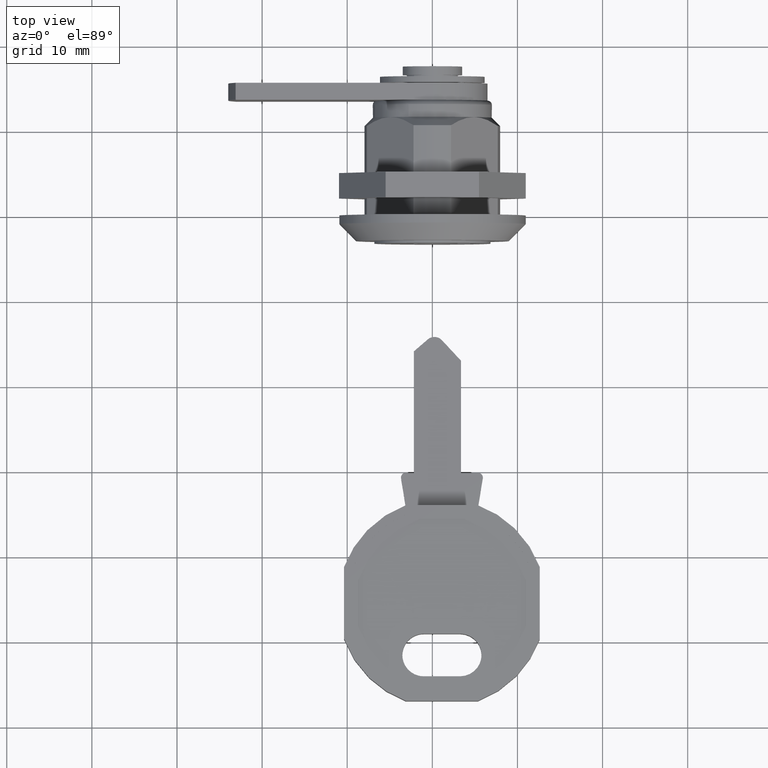
[diagram: clean part render]
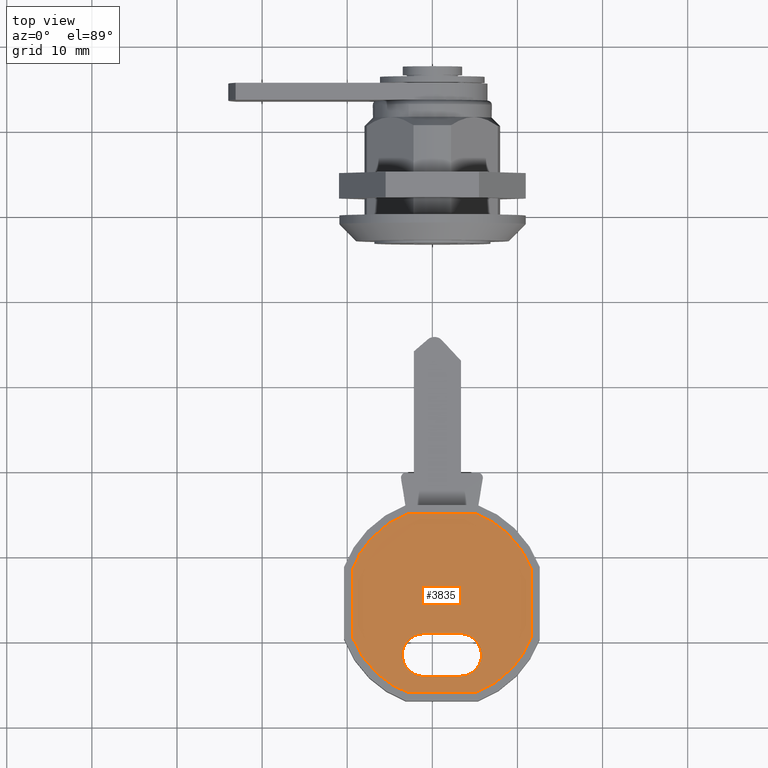
[diagram: same view with one face highlighted and labeled with its STEP entity id]
A machine part, top view. The second image highlights one B-rep face of the part: STEP entity #3835.
In plain terms, the highlighted face is a freeform B-spline surface patch.
Its self-contained STEP definition (entity closure, byte-faithful):
#3690=CARTESIAN_POINT('',(-52.114582039969640,10.423951151485049,2.400000000000000));
#3691=CARTESIAN_POINT('',(-29.016679943510919,10.423951151485049,2.400000000000000));
#3692=CARTESIAN_POINT('',(-52.114582039969640,-12.673951151485030,2.400000000000000));
#3693=CARTESIAN_POINT('',(-29.016679943510919,-12.673951151485030,2.400000000000000));
#3694=B_SPLINE_SURFACE_WITH_KNOTS('',1,1,((#3690,#3692),(#3691,#3693)),.UNSPECIFIED.,.F.,.F.,.U.,(2,2),(2,2),(0.0,23.097902096458728),(0.0,23.097902302970070),.UNSPECIFIED.);
#3695=CARTESIAN_POINT('',(-51.065631631838301,-5.163873806007100,2.399999999999960));
#3696=VERTEX_POINT('',#3695);
#3697=CARTESIAN_POINT('',(-44.604504891624700,-11.625000546220701,2.399999999999960));
#3698=VERTEX_POINT('',#3697);
#3699=CARTESIAN_POINT('',(-51.065631631838329,-5.163873806007109,2.399999999999960));
#3700=CARTESIAN_POINT('',(-49.270741950826519,-9.830110865208919,2.399999999999960));
#3701=CARTESIAN_POINT('',(-44.604504891624700,-11.625000546220701,2.399999999999960));
#3709=(BOUNDED_CURVE()B_SPLINE_CURVE(2,(#3699,#3700,#3701),.UNSPECIFIED.,.F.,.U.)CURVE()GEOMETRIC_REPRESENTATION_ITEM()QUASI_UNIFORM_CURVE()RATIONAL_B_SPLINE_CURVE((1.0,0.913825432317849,1.0))REPRESENTATION_ITEM(''));
#3710=EDGE_CURVE('',#3696,#3698,#3709,.T.);
#3711=ORIENTED_EDGE('',*,*,#3710,.T.);
#3712=CARTESIAN_POINT('',(-36.526757279610500,-11.625000546220701,2.399999999999960));
#3713=VERTEX_POINT('',#3712);
#3714=CARTESIAN_POINT('',(-44.604504891624700,-11.625000546220701,2.399999999999960));
#3715=CARTESIAN_POINT('',(-36.526757279610500,-11.625000546220701,2.399999999999960));
#3716=QUASI_UNIFORM_CURVE('',1,(#3714,#3715),.UNSPECIFIED.,.F.,.U.);
#3717=EDGE_CURVE('',#3698,#3713,#3716,.T.);
#3718=ORIENTED_EDGE('',*,*,#3717,.T.);
#3719=CARTESIAN_POINT('',(-30.065630539396949,-5.163873806007169,2.399999999999960));
#3720=VERTEX_POINT('',#3719);
#3721=CARTESIAN_POINT('',(-36.526757279610507,-11.625000546220690,2.399999999999960));
#3722=CARTESIAN_POINT('',(-31.860520220408755,-9.830110865208912,2.399999999999960));
#3723=CARTESIAN_POINT('',(-30.065630539396938,-5.163873806007171,2.399999999999960));
#3731=(BOUNDED_CURVE()B_SPLINE_CURVE(2,(#3721,#3722,#3723),.UNSPECIFIED.,.F.,.U.)CURVE()GEOMETRIC_REPRESENTATION_ITEM()QUASI_UNIFORM_CURVE()RATIONAL_B_SPLINE_CURVE((1.0,0.913825432317851,1.0))REPRESENTATION_ITEM(''));
#3732=EDGE_CURVE('',#3713,#3720,#3731,.T.);
#3733=ORIENTED_EDGE('',*,*,#3732,.T.);
#3734=CARTESIAN_POINT('',(-30.065630539396899,2.913873806007105,2.399999999999960));
#3735=VERTEX_POINT('',#3734);
#3736=CARTESIAN_POINT('',(-30.065630539396949,-5.163873806007169,2.399999999999960));
#3737=CARTESIAN_POINT('',(-30.065630539396899,2.913873806007105,2.399999999999960));
#3738=QUASI_UNIFORM_CURVE('',1,(#3736,#3737),.UNSPECIFIED.,.F.,.U.);
#3739=EDGE_CURVE('',#3720,#3735,#3738,.T.);
#3740=ORIENTED_EDGE('',*,*,#3739,.T.);
#3741=CARTESIAN_POINT('',(-36.526757279610550,9.375000546220720,2.399999999999960));
#3742=VERTEX_POINT('',#3741);
#3743=CARTESIAN_POINT('',(-30.065630539396921,2.913873806007094,2.399999999999960));
#3744=CARTESIAN_POINT('',(-31.860520220408720,7.580110865208920,2.399999999999961));
#3745=CARTESIAN_POINT('',(-36.526757279610543,9.375000546220724,2.399999999999960));
#3753=(BOUNDED_CURVE()B_SPLINE_CURVE(2,(#3743,#3744,#3745),.UNSPECIFIED.,.F.,.U.)CURVE()GEOMETRIC_REPRESENTATION_ITEM()QUASI_UNIFORM_CURVE()RATIONAL_B_SPLINE_CURVE((1.0,0.913825432317850,1.0))REPRESENTATION_ITEM(''));
#3754=EDGE_CURVE('',#3735,#3742,#3753,.T.);
#3755=ORIENTED_EDGE('',*,*,#3754,.T.);
#3756=CARTESIAN_POINT('',(-44.604504891624700,9.375000546220690,2.399999999999960));
#3757=VERTEX_POINT('',#3756);
#3758=CARTESIAN_POINT('',(-36.526757279610550,9.375000546220720,2.399999999999960));
#3759=CARTESIAN_POINT('',(-44.604504891624700,9.375000546220690,2.399999999999960));
#3760=QUASI_UNIFORM_CURVE('',1,(#3758,#3759),.UNSPECIFIED.,.F.,.U.);
#3761=EDGE_CURVE('',#3742,#3757,#3760,.T.);
#3762=ORIENTED_EDGE('',*,*,#3761,.T.);
#3763=CARTESIAN_POINT('',(-51.065631631838301,2.913873806007120,2.399999999999960));
#3764=VERTEX_POINT('',#3763);
#3765=CARTESIAN_POINT('',(-44.604504891624700,9.375000546220704,2.399999999999960));
#3766=CARTESIAN_POINT('',(-49.270741950826505,7.580110865208927,2.399999999999960));
#3767=CARTESIAN_POINT('',(-51.065631631838322,2.913873806007130,2.399999999999960));
#3775=(BOUNDED_CURVE()B_SPLINE_CURVE(2,(#3765,#3766,#3767),.UNSPECIFIED.,.F.,.U.)CURVE()GEOMETRIC_REPRESENTATION_ITEM()QUASI_UNIFORM_CURVE()RATIONAL_B_SPLINE_CURVE((1.0,0.913825432317849,1.0))REPRESENTATION_ITEM(''));
#3776=EDGE_CURVE('',#3757,#3764,#3775,.T.);
#3777=ORIENTED_EDGE('',*,*,#3776,.T.);
#3778=CARTESIAN_POINT('',(-51.065631631838301,2.913873806007120,2.399999999999960));
#3779=CARTESIAN_POINT('',(-51.065631631838301,-5.163873806007100,2.399999999999960));
#3780=QUASI_UNIFORM_CURVE('',1,(#3778,#3779),.UNSPECIFIED.,.F.,.U.);
#3781=EDGE_CURVE('',#3764,#3696,#3780,.T.);
#3782=ORIENTED_EDGE('',*,*,#3781,.T.);
#3783=EDGE_LOOP('',(#3711,#3718,#3733,#3740,#3755,#3762,#3777,#3782));
#3784=FACE_OUTER_BOUND('',#3783,.T.);
#3785=CARTESIAN_POINT('',(-49.165631494095713,1.025000102119492,2.399999999999960));
#3786=VERTEX_POINT('',#3785);
#3787=CARTESIAN_POINT('',(-49.165631494095713,-3.275000102119490,2.399999999999960));
#3788=VERTEX_POINT('',#3787);
#3789=CARTESIAN_POINT('',(-49.165631494095713,1.025000102119492,2.399999999999960));
#3790=CARTESIAN_POINT('',(-49.165631494095713,-3.275000102119490,2.399999999999960));
#3791=QUASI_UNIFORM_CURVE('',1,(#3789,#3790),.UNSPECIFIED.,.F.,.U.);
#3792=EDGE_CURVE('',#3786,#3788,#3791,.T.);
#3793=ORIENTED_EDGE('',*,*,#3792,.F.);
#3794=CARTESIAN_POINT('',(-44.165631256608449,1.025000102119492,2.399999999999960));
#3795=VERTEX_POINT('',#3794);
#3796=CARTESIAN_POINT('',(-44.165631256608492,1.025000102119492,2.399999999999960));
#3797=CARTESIAN_POINT('',(-44.165631256608485,3.525000220863107,2.399999999999960));
#3798=CARTESIAN_POINT('',(-46.665631375352113,3.525000220863107,2.399999999999960));
#3799=CARTESIAN_POINT('',(-49.165631494095727,3.525000220863107,2.399999999999960));
#3800=CARTESIAN_POINT('',(-49.165631494095720,1.025000102119492,2.399999999999960));
#3808=(BOUNDED_CURVE()B_SPLINE_CURVE(2,(#3796,#3797,#3798,#3799,#3800),.UNSPECIFIED.,.F.,.U.)B_SPLINE_CURVE_WITH_KNOTS((3,2,3),(0.0,0.500000000000000,1.0),.UNSPECIFIED.)CURVE()GEOMETRIC_REPRESENTATION_ITEM()RATIONAL_B_SPLINE_CURVE((1.0,0.707106781186548,1.0,0.707106781186548,1.0))REPRESENTATION_ITEM(''));
#3809=EDGE_CURVE('',#3795,#3786,#3808,.T.);
#3810=ORIENTED_EDGE('',*,*,#3809,.F.);
#3811=CARTESIAN_POINT('',(-44.165631256608449,-3.275000102119490,2.399999999999960));
#3812=VERTEX_POINT('',#3811);
#3813=CARTESIAN_POINT('',(-44.165631256608449,-3.275000102119490,2.399999999999960));
#3814=CARTESIAN_POINT('',(-44.165631256608449,1.025000102119492,2.399999999999960));
#3815=QUASI_UNIFORM_CURVE('',1,(#3813,#3814),.UNSPECIFIED.,.F.,.U.);
#3816=EDGE_CURVE('',#3812,#3795,#3815,.T.);
#3817=ORIENTED_EDGE('',*,*,#3816,.F.);
#3818=CARTESIAN_POINT('',(-49.165631494095727,-3.275000102119490,2.399999999999960));
#3819=CARTESIAN_POINT('',(-49.165631494095734,-5.775000220863110,2.399999999999961));
#3820=CARTESIAN_POINT('',(-46.665631375352113,-5.775000220863110,2.399999999999960));
#3821=CARTESIAN_POINT('',(-44.165631256608478,-5.775000220863110,2.399999999999961));
#3822=CARTESIAN_POINT('',(-44.165631256608478,-3.275000102119490,2.399999999999960));
#3830=(BOUNDED_CURVE()B_SPLINE_CURVE(2,(#3818,#3819,#3820,#3821,#3822),.UNSPECIFIED.,.F.,.U.)B_SPLINE_CURVE_WITH_KNOTS((3,2,3),(0.0,0.500000000000000,1.0),.UNSPECIFIED.)CURVE()GEOMETRIC_REPRESENTATION_ITEM()RATIONAL_B_SPLINE_CURVE((1.0,0.707106781186547,1.0,0.707106781186547,1.0))REPRESENTATION_ITEM(''));
#3831=EDGE_CURVE('',#3788,#3812,#3830,.T.);
#3832=ORIENTED_EDGE('',*,*,#3831,.F.);
#3833=EDGE_LOOP('',(#3793,#3810,#3817,#3832));
#3834=FACE_BOUND('',#3833,.T.);
#3835=ADVANCED_FACE('',(#3784,#3834),#3694,.F.);